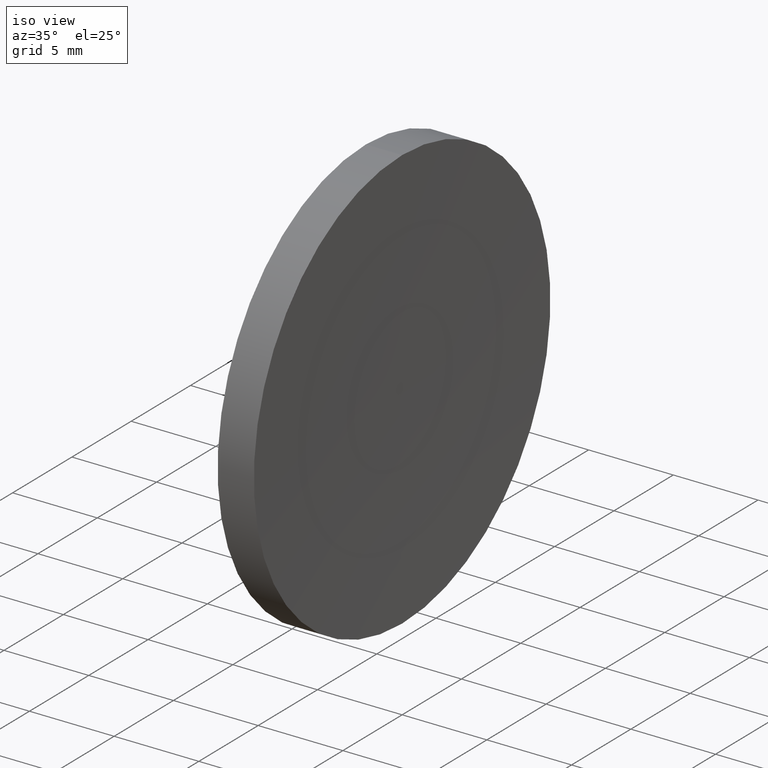
[diagram: clean part render]
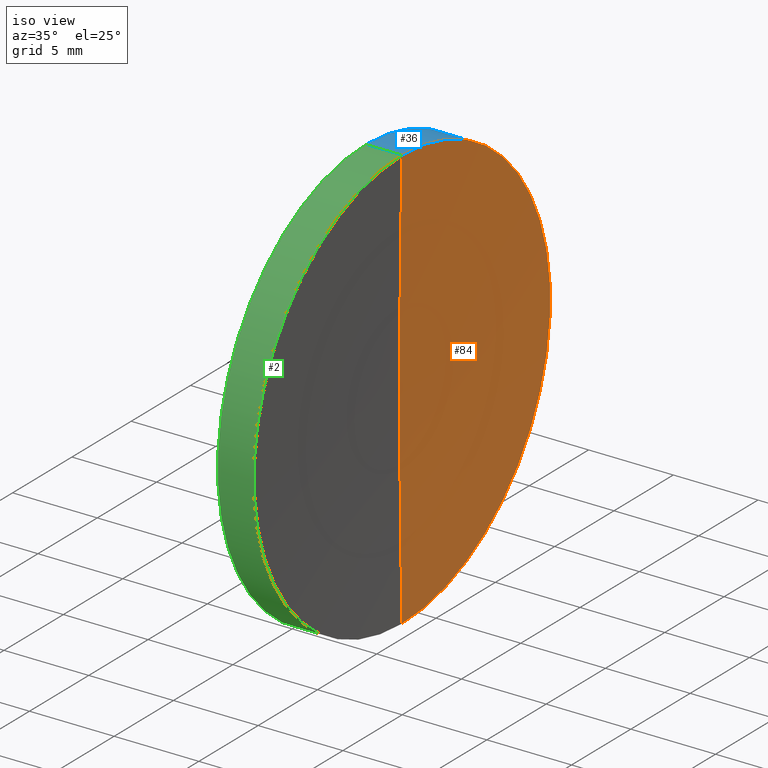
[diagram: same view with three faces highlighted in distinct colors, each labeled with its STEP entity id]
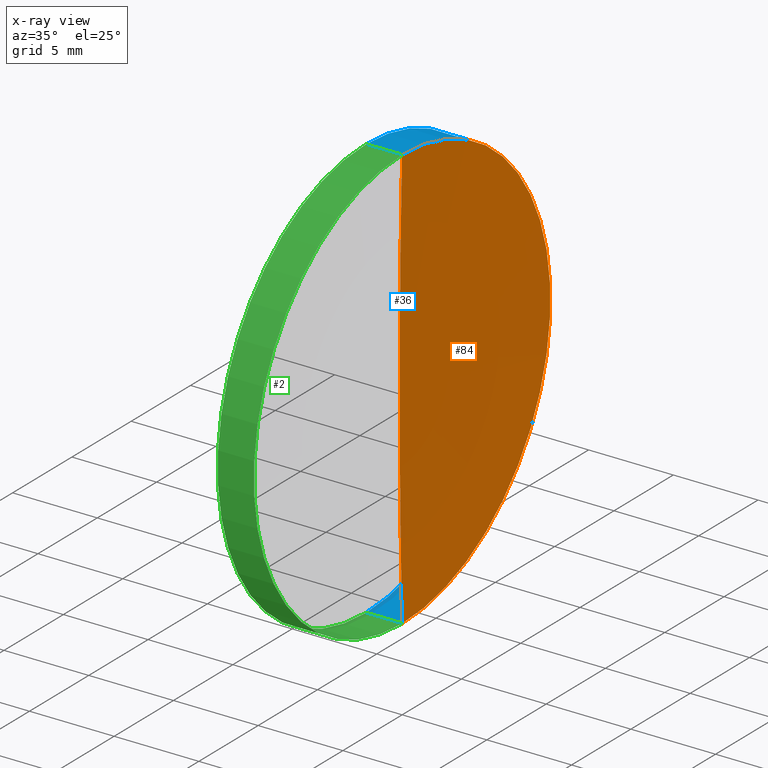
[diagram: x-ray of the same camera — body ghosted, the three highlighted faces saturated]
A machine part, iso view with three faces highlighted in distinct colors.
The next image is the same camera in x-ray (body ghosted, the three faces saturated) — at least one of them is partly hidden behind the body in this view.
Their STEP definitions:

[orange] entity #84 — the highlighted toroidal blend (fillet) surface has major radius 0.5881 mm and minor (blend) radius 516.5 mm.
#13 = DIRECTION ( 'NONE',  ( 0.0000000000000000000, -1.209100583449468600E-016, 1.000000000000000000 ) ) ;
#17 = VERTEX_POINT ( 'NONE', #135 ) ;
#19 = TOROIDAL_SURFACE ( 'NONE', #47, 0.5881144325349321200, 516.5000000000000000 ) ;
#20 = EDGE_CURVE ( 'NONE', #166, #17, #38, .T. ) ;
#29 = AXIS2_PLACEMENT_3D ( 'NONE', #69, #112, #13 ) ;
#31 = DIRECTION ( 'NONE',  ( 0.0000000000000000000, -1.000000000000000000, 0.0000000000000000000 ) ) ;
#38 = CIRCLE ( 'NONE', #67, 516.5000000000000000 ) ;
#47 = AXIS2_PLACEMENT_3D ( 'NONE', #145, #73, #101 ) ;
#64 = ORIENTED_EDGE ( 'NONE', *, *, #20, .T. ) ;
#67 = AXIS2_PLACEMENT_3D ( 'NONE', #120, #31, #132 ) ;
#68 = ORIENTED_EDGE ( 'NONE', *, *, #79, .F. ) ;
#69 = CARTESIAN_POINT ( 'NONE',  ( 576.0320022231961700, 32.61076812922678400, -0.5881144325349321200 ) ) ;
#70 = DIRECTION ( 'NONE',  ( -1.000000000000000000, -0.0000000000000000000, -0.0000000000000000000 ) ) ;
#71 = EDGE_LOOP ( 'NONE', ( #68, #90, #64 ) ) ;
#73 = DIRECTION ( 'NONE',  ( -1.000000000000000000, -0.0000000000000000000, -0.0000000000000000000 ) ) ;
#77 = EDGE_CURVE ( 'NONE', #166, #128, #106, .T. ) ;
#79 = EDGE_CURVE ( 'NONE', #128, #17, #119, .T. ) ;
#83 = CARTESIAN_POINT ( 'NONE',  ( 59.66938062648566200, 32.61076812922678400, 12.49999999999684200 ) ) ;
#84 = ADVANCED_FACE ( 'NONE', ( #155 ), #19, .F. ) ;
#90 = ORIENTED_EDGE ( 'NONE', *, *, #77, .F. ) ;
#101 = DIRECTION ( 'NONE',  ( 0.0000000000000000000, 0.0000000000000000000, 1.000000000000000000 ) ) ;
#106 = CIRCLE ( 'NONE', #116, 12.49999999999999600 ) ;
#110 = DIRECTION ( 'NONE',  ( 0.0000000000000000000, 0.0000000000000000000, 1.000000000000000000 ) ) ;
#112 = DIRECTION ( 'NONE',  ( -0.0000000000000000000, 1.000000000000000000, 1.224646799147353200E-016 ) ) ;
#116 = AXIS2_PLACEMENT_3D ( 'NONE', #134, #70, #110 ) ;
#119 = CIRCLE ( 'NONE', #29, 516.5000000000000000 ) ;
#120 = CARTESIAN_POINT ( 'NONE',  ( 576.0320022231961700, 32.61076812922678400, 0.5881144325349321200 ) ) ;
#128 = VERTEX_POINT ( 'NONE', #149 ) ;
#132 = DIRECTION ( 'NONE',  ( 0.0000000000000000000, 0.0000000000000000000, -1.000000000000000000 ) ) ;
#134 = CARTESIAN_POINT ( 'NONE',  ( 59.66938062648569000, 32.61076812922678400, 0.0000000000000000000 ) ) ;
#135 = CARTESIAN_POINT ( 'NONE',  ( 59.53233705252625200, 32.61076812922678400, 0.0000000000000000000 ) ) ;
#145 = CARTESIAN_POINT ( 'NONE',  ( 576.0320022231961700, 32.61076812922678400, 0.0000000000000000000 ) ) ;
#149 = CARTESIAN_POINT ( 'NONE',  ( 59.66938062648566200, 32.61076812922678400, -12.49999999999684200 ) ) ;
#155 = FACE_OUTER_BOUND ( 'NONE', #71, .T. ) ;
#166 = VERTEX_POINT ( 'NONE', #83 ) ;

[blue] entity #36 — the highlighted cylindrical surface (partial cylindrical patch) has radius 12.5 mm, axis along (-1, -0, -0).
#1 = VECTOR ( 'NONE', #66, 1000.000000000000000 ) ;
#3 = CARTESIAN_POINT ( 'NONE',  ( 56.10091507999716500, 32.61076812922678400, 0.0000000000000000000 ) ) ;
#4 = VERTEX_POINT ( 'NONE', #33 ) ;
#9 = EDGE_CURVE ( 'NONE', #166, #4, #53, .T. ) ;
#24 = FACE_OUTER_BOUND ( 'NONE', #32, .T. ) ;
#25 = CARTESIAN_POINT ( 'NONE',  ( 57.53233705252611700, 32.61076812922678400, -12.49999999999999600 ) ) ;
#32 = EDGE_LOOP ( 'NONE', ( #57, #162, #91, #63 ) ) ;
#33 = CARTESIAN_POINT ( 'NONE',  ( 57.53233705252611700, 32.61076812922678400, 12.49999999999999600 ) ) ;
#36 = ADVANCED_FACE ( 'NONE', ( #24 ), #42, .T. ) ;
#42 = CYLINDRICAL_SURFACE ( 'NONE', #103, 12.49999999999999600 ) ;
#45 = DIRECTION ( 'NONE',  ( -1.000000000000000000, -0.0000000000000000000, -0.0000000000000000000 ) ) ;
#46 = CARTESIAN_POINT ( 'NONE',  ( 56.10091507999716500, 32.61076812922678400, 12.49999999999999600 ) ) ;
#52 = VECTOR ( 'NONE', #163, 1000.000000000000000 ) ;
#53 = LINE ( 'NONE', #46, #1 ) ;
#57 = ORIENTED_EDGE ( 'NONE', *, *, #77, .T. ) ;
#60 = DIRECTION ( 'NONE',  ( -1.000000000000000000, -0.0000000000000000000, -0.0000000000000000000 ) ) ;
#62 = DIRECTION ( 'NONE',  ( 0.0000000000000000000, 0.0000000000000000000, 1.000000000000000000 ) ) ;
#63 = ORIENTED_EDGE ( 'NONE', *, *, #9, .F. ) ;
#66 = DIRECTION ( 'NONE',  ( -1.000000000000000000, -0.0000000000000000000, -0.0000000000000000000 ) ) ;
#70 = DIRECTION ( 'NONE',  ( -1.000000000000000000, -0.0000000000000000000, -0.0000000000000000000 ) ) ;
#77 = EDGE_CURVE ( 'NONE', #166, #128, #106, .T. ) ;
#83 = CARTESIAN_POINT ( 'NONE',  ( 59.66938062648566200, 32.61076812922678400, 12.49999999999684200 ) ) ;
#85 = CARTESIAN_POINT ( 'NONE',  ( 56.10091507999716500, 32.61076812922678400, -12.49999999999999600 ) ) ;
#88 = CIRCLE ( 'NONE', #125, 12.49999999999999600 ) ;
#91 = ORIENTED_EDGE ( 'NONE', *, *, #157, .F. ) ;
#92 = EDGE_CURVE ( 'NONE', #128, #102, #117, .T. ) ;
#102 = VERTEX_POINT ( 'NONE', #25 ) ;
#103 = AXIS2_PLACEMENT_3D ( 'NONE', #3, #45, #146 ) ;
#106 = CIRCLE ( 'NONE', #116, 12.49999999999999600 ) ;
#110 = DIRECTION ( 'NONE',  ( 0.0000000000000000000, 0.0000000000000000000, 1.000000000000000000 ) ) ;
#113 = CARTESIAN_POINT ( 'NONE',  ( 57.53233705252611700, 32.61076812922678400, 0.0000000000000000000 ) ) ;
#116 = AXIS2_PLACEMENT_3D ( 'NONE', #134, #70, #110 ) ;
#117 = LINE ( 'NONE', #85, #52 ) ;
#125 = AXIS2_PLACEMENT_3D ( 'NONE', #113, #60, #62 ) ;
#128 = VERTEX_POINT ( 'NONE', #149 ) ;
#134 = CARTESIAN_POINT ( 'NONE',  ( 59.66938062648569000, 32.61076812922678400, 0.0000000000000000000 ) ) ;
#146 = DIRECTION ( 'NONE',  ( 0.0000000000000000000, 0.0000000000000000000, 1.000000000000000000 ) ) ;
#149 = CARTESIAN_POINT ( 'NONE',  ( 59.66938062648566200, 32.61076812922678400, -12.49999999999684200 ) ) ;
#157 = EDGE_CURVE ( 'NONE', #4, #102, #88, .T. ) ;
#162 = ORIENTED_EDGE ( 'NONE', *, *, #92, .T. ) ;
#163 = DIRECTION ( 'NONE',  ( -1.000000000000000000, -0.0000000000000000000, -0.0000000000000000000 ) ) ;
#166 = VERTEX_POINT ( 'NONE', #83 ) ;

[green] entity #2 — the highlighted cylindrical surface (partial cylindrical patch) has radius 12.5 mm, axis along (-1, -0, -0).
#1 = VECTOR ( 'NONE', #66, 1000.000000000000000 ) ;
#2 = ADVANCED_FACE ( 'NONE', ( #61 ), #158, .T. ) ;
#4 = VERTEX_POINT ( 'NONE', #33 ) ;
#5 = DIRECTION ( 'NONE',  ( 0.0000000000000000000, 0.0000000000000000000, 1.000000000000000000 ) ) ;
#9 = EDGE_CURVE ( 'NONE', #166, #4, #53, .T. ) ;
#10 = CARTESIAN_POINT ( 'NONE',  ( 57.53233705252611700, 32.61076812922678400, 0.0000000000000000000 ) ) ;
#18 = DIRECTION ( 'NONE',  ( -1.000000000000000000, -0.0000000000000000000, -0.0000000000000000000 ) ) ;
#25 = CARTESIAN_POINT ( 'NONE',  ( 57.53233705252611700, 32.61076812922678400, -12.49999999999999600 ) ) ;
#33 = CARTESIAN_POINT ( 'NONE',  ( 57.53233705252611700, 32.61076812922678400, 12.49999999999999600 ) ) ;
#40 = AXIS2_PLACEMENT_3D ( 'NONE', #10, #124, #150 ) ;
#43 = CARTESIAN_POINT ( 'NONE',  ( 56.10091507999716500, 32.61076812922678400, 0.0000000000000000000 ) ) ;
#46 = CARTESIAN_POINT ( 'NONE',  ( 56.10091507999716500, 32.61076812922678400, 12.49999999999999600 ) ) ;
#51 = DIRECTION ( 'NONE',  ( 0.0000000000000000000, 0.0000000000000000000, 1.000000000000000000 ) ) ;
#52 = VECTOR ( 'NONE', #163, 1000.000000000000000 ) ;
#53 = LINE ( 'NONE', #46, #1 ) ;
#55 = CIRCLE ( 'NONE', #151, 12.49999999999999600 ) ;
#61 = FACE_OUTER_BOUND ( 'NONE', #107, .T. ) ;
#65 = CIRCLE ( 'NONE', #40, 12.49999999999999600 ) ;
#66 = DIRECTION ( 'NONE',  ( -1.000000000000000000, -0.0000000000000000000, -0.0000000000000000000 ) ) ;
#74 = ORIENTED_EDGE ( 'NONE', *, *, #159, .T. ) ;
#75 = CARTESIAN_POINT ( 'NONE',  ( 59.66938062648569000, 32.61076812922678400, 0.0000000000000000000 ) ) ;
#76 = ORIENTED_EDGE ( 'NONE', *, *, #81, .F. ) ;
#81 = EDGE_CURVE ( 'NONE', #102, #4, #65, .T. ) ;
#83 = CARTESIAN_POINT ( 'NONE',  ( 59.66938062648566200, 32.61076812922678400, 12.49999999999684200 ) ) ;
#85 = CARTESIAN_POINT ( 'NONE',  ( 56.10091507999716500, 32.61076812922678400, -12.49999999999999600 ) ) ;
#92 = EDGE_CURVE ( 'NONE', #128, #102, #117, .T. ) ;
#94 = ORIENTED_EDGE ( 'NONE', *, *, #9, .T. ) ;
#102 = VERTEX_POINT ( 'NONE', #25 ) ;
#107 = EDGE_LOOP ( 'NONE', ( #129, #74, #94, #76 ) ) ;
#109 = AXIS2_PLACEMENT_3D ( 'NONE', #43, #18, #5 ) ;
#117 = LINE ( 'NONE', #85, #52 ) ;
#124 = DIRECTION ( 'NONE',  ( -1.000000000000000000, -0.0000000000000000000, -0.0000000000000000000 ) ) ;
#128 = VERTEX_POINT ( 'NONE', #149 ) ;
#129 = ORIENTED_EDGE ( 'NONE', *, *, #92, .F. ) ;
#147 = DIRECTION ( 'NONE',  ( -1.000000000000000000, -0.0000000000000000000, -0.0000000000000000000 ) ) ;
#149 = CARTESIAN_POINT ( 'NONE',  ( 59.66938062648566200, 32.61076812922678400, -12.49999999999684200 ) ) ;
#150 = DIRECTION ( 'NONE',  ( 0.0000000000000000000, 0.0000000000000000000, 1.000000000000000000 ) ) ;
#151 = AXIS2_PLACEMENT_3D ( 'NONE', #75, #147, #51 ) ;
#158 = CYLINDRICAL_SURFACE ( 'NONE', #109, 12.49999999999999600 ) ;
#159 = EDGE_CURVE ( 'NONE', #128, #166, #55, .T. ) ;
#163 = DIRECTION ( 'NONE',  ( -1.000000000000000000, -0.0000000000000000000, -0.0000000000000000000 ) ) ;
#166 = VERTEX_POINT ( 'NONE', #83 ) ;